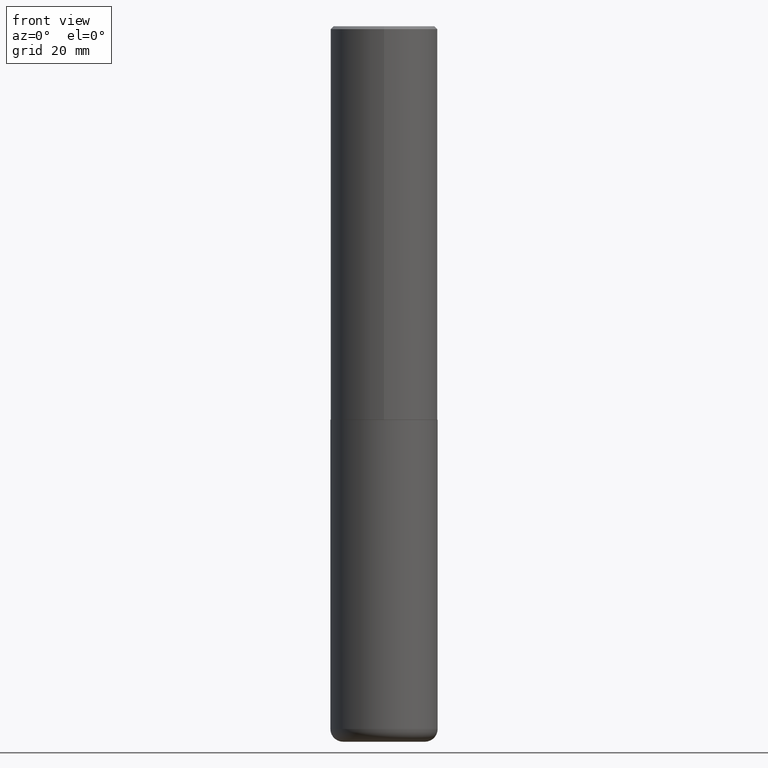
[diagram: clean part render]
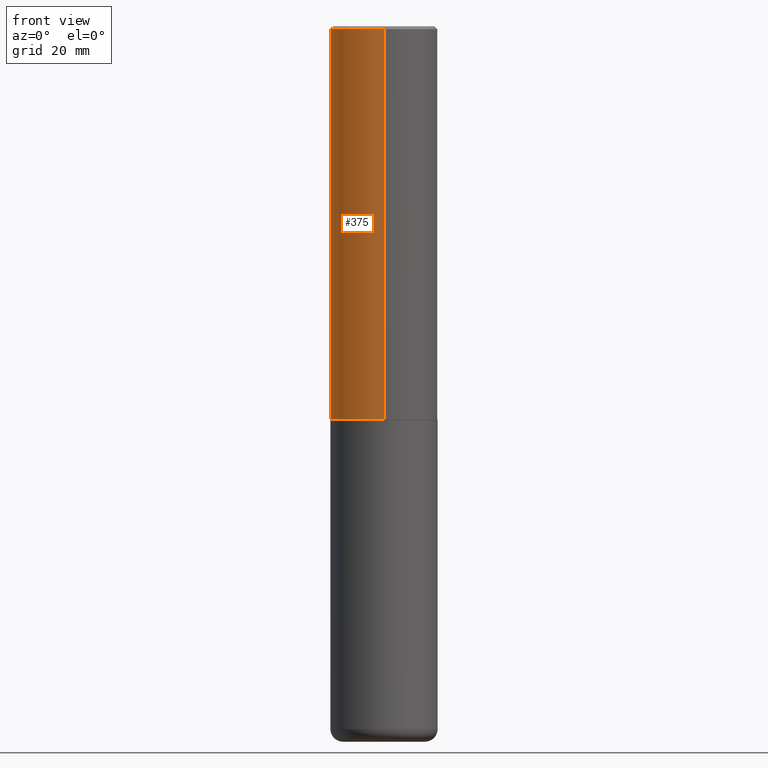
[diagram: same view with one face highlighted and labeled with its STEP entity id]
A machine part, front view. The second image highlights one B-rep face of the part: STEP entity #375.
In plain terms, the highlighted cylindrical surface (partial cylindrical patch) has radius 9.525 mm, axis along (-0, 0, 1).
Its self-contained STEP definition (entity closure, byte-faithful):
#17 = CARTESIAN_POINT ( 'NONE',  ( 2.618611004132350411E-15, 0.3749999999999999445, -0.02000000000000139513 ) ) ;
#23 = ORIENTED_EDGE ( 'NONE', *, *, #266, .T. ) ;
#42 = AXIS2_PLACEMENT_3D ( 'NONE', #130, #175, #69 ) ;
#60 = ORIENTED_EDGE ( 'NONE', *, *, #293, .F. ) ;
#62 = VECTOR ( 'NONE', #106, 39.37007874015748143 ) ;
#69 = DIRECTION ( 'NONE',  ( -6.982962677686266711E-15, -1.000000000000000000, 3.490662795793665951E-15 ) ) ;
#80 = VECTOR ( 'NONE', #150, 39.37007874015748143 ) ;
#81 = DIRECTION ( 'NONE',  ( -6.982962677686265922E-15, -1.000000000000000000, 3.494488891895536035E-15 ) ) ;
#89 = CIRCLE ( 'NONE', #343, 0.3750000000000000555 ) ;
#101 = VERTEX_POINT ( 'NONE', #139 ) ;
#105 = EDGE_LOOP ( 'NONE', ( #122, #23, #219, #60 ) ) ;
#106 = DIRECTION ( 'NONE',  ( -2.446040391741596606E-29, 3.490662795793665557E-15, 1.000000000000000000 ) ) ;
#122 = ORIENTED_EDGE ( 'NONE', *, *, #131, .F. ) ;
#126 = CARTESIAN_POINT ( 'NONE',  ( -2.618611004132284935E-15, -0.3750000000000099920, -2.748999999999999222 ) ) ;
#130 = CARTESIAN_POINT ( 'NONE',  ( 0.000000000000000000, 0.000000000000000000, 0.000000000000000000 ) ) ;
#131 = EDGE_CURVE ( 'NONE', #265, #190, #277, .T. ) ;
#134 = CARTESIAN_POINT ( 'NONE',  ( 2.664535259100411196E-15, 0.3749999999999907296, -2.749000000000000998 ) ) ;
#139 = CARTESIAN_POINT ( 'NONE',  ( -2.572686749164323547E-15, -0.3750000000000001110, -0.01999999999999877570 ) ) ;
#150 = DIRECTION ( 'NONE',  ( -2.446040391741596606E-29, 3.490662795793665557E-15, 1.000000000000000000 ) ) ;
#162 = CARTESIAN_POINT ( 'NONE',  ( 6.724165036897648492E-29, -9.595832025636787455E-15, -2.749000000000000110 ) ) ;
#167 = DIRECTION ( 'NONE',  ( -2.446040391741596606E-29, 3.490662795793665557E-15, 1.000000000000000000 ) ) ;
#175 = DIRECTION ( 'NONE',  ( -2.446040391741596606E-29, 3.490662795793665557E-15, 1.000000000000000000 ) ) ;
#190 = VERTEX_POINT ( 'NONE', #17 ) ;
#192 = CARTESIAN_POINT ( 'NONE',  ( 4.892080783483214581E-31, -6.981325591587361238E-17, -0.02000000000000008715 ) ) ;
#197 = CARTESIAN_POINT ( 'NONE',  ( -2.618611004132351594E-15, -0.3750000000000002220, 1.308998548422625521E-15 ) ) ;
#211 = FACE_OUTER_BOUND ( 'NONE', #105, .T. ) ;
#214 = LINE ( 'NONE', #197, #80 ) ;
#219 = ORIENTED_EDGE ( 'NONE', *, *, #294, .T. ) ;
#254 = CIRCLE ( 'NONE', #408, 0.3750000000000003886 ) ;
#265 = VERTEX_POINT ( 'NONE', #134 ) ;
#266 = EDGE_CURVE ( 'NONE', #265, #330, #254, .T. ) ;
#277 = LINE ( 'NONE', #341, #62 ) ;
#293 = EDGE_CURVE ( 'NONE', #190, #101, #89, .T. ) ;
#294 = EDGE_CURVE ( 'NONE', #330, #101, #214, .T. ) ;
#298 = DIRECTION ( 'NONE',  ( -6.982962677686265922E-15, -1.000000000000000000, 2.913971193241877611E-15 ) ) ;
#330 = VERTEX_POINT ( 'NONE', #126 ) ;
#341 = CARTESIAN_POINT ( 'NONE',  ( 2.664535259100376880E-15, 0.3750000000000002220, -1.308998548422625521E-15 ) ) ;
#343 = AXIS2_PLACEMENT_3D ( 'NONE', #192, #372, #81 ) ;
#363 = CYLINDRICAL_SURFACE ( 'NONE', #42, 0.3750000000000002220 ) ;
#372 = DIRECTION ( 'NONE',  ( -2.446040391741596606E-29, 3.490662795793665557E-15, 1.000000000000000000 ) ) ;
#375 = ADVANCED_FACE ( 'NONE', ( #211 ), #363, .T. ) ;
#408 = AXIS2_PLACEMENT_3D ( 'NONE', #162, #167, #298 ) ;